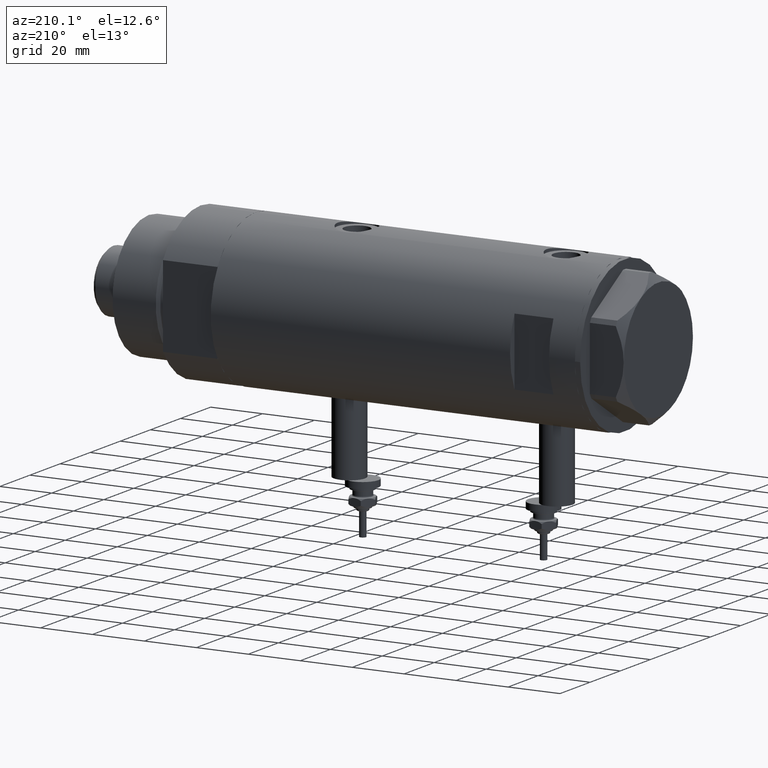
[diagram: clean part render]
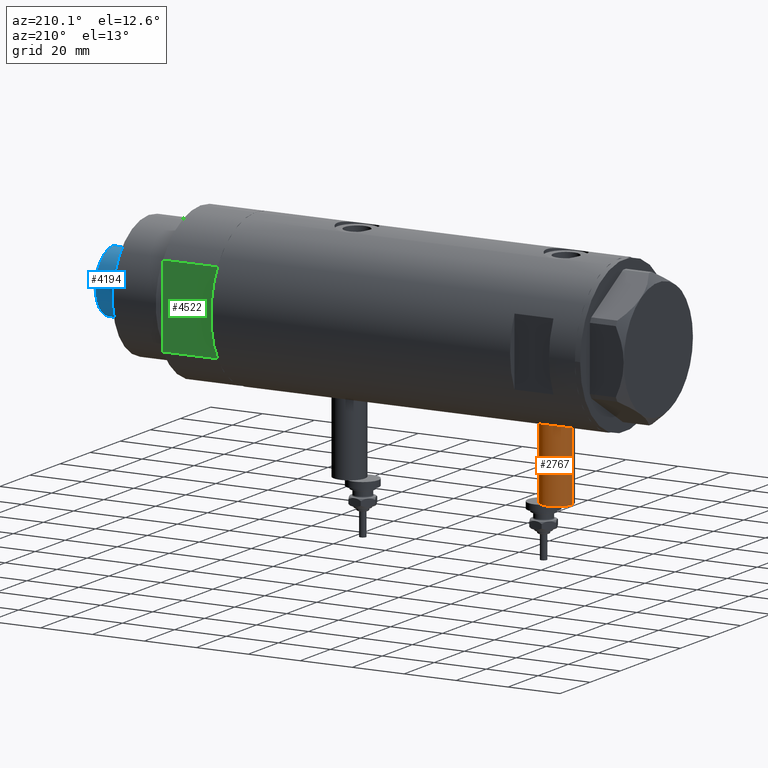
[diagram: same view with three faces highlighted in distinct colors, each labeled with its STEP entity id]
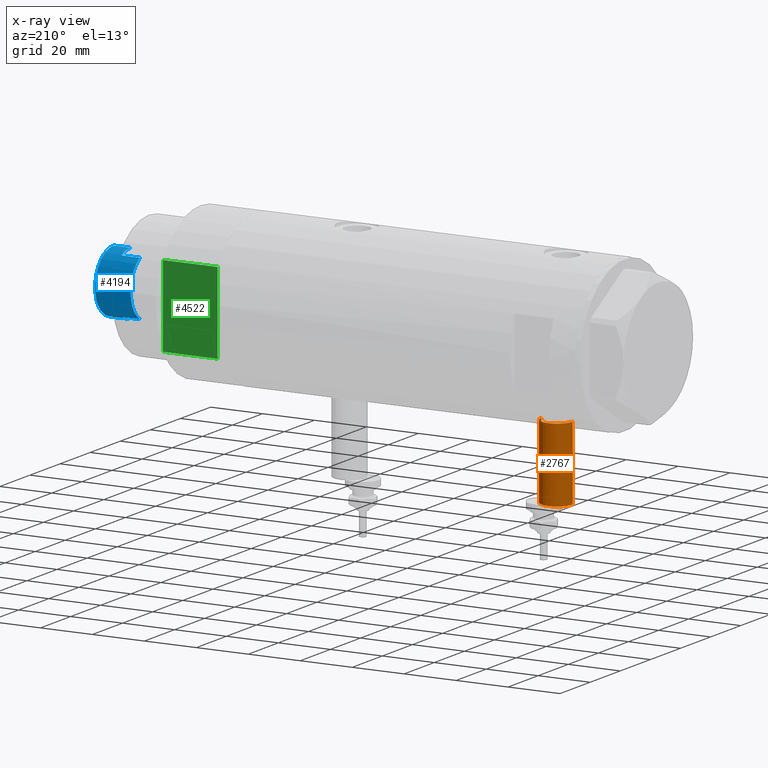
[diagram: x-ray of the same camera — body ghosted, the three highlighted faces saturated]
A machine part, auxiliary view with three faces highlighted in distinct colors.
The next image is the same camera in x-ray (body ghosted, the three faces saturated) — at least one of them is partly hidden behind the body in this view.
Their STEP definitions:

[orange] entity #2767 — the highlighted cylindrical surface (edge-blend (fillet) strip) has radius 6 mm, axis along (0, 0, 1).
#2 = VERTEX_POINT ( 'NONE', #5113 ) ;
#185 = AXIS2_PLACEMENT_3D ( 'NONE', #4355, #240, #2068 ) ;
#240 = DIRECTION ( 'NONE',  ( 1.000000000000000000, -0.000000000000000000, -0.000000000000000000 ) ) ;
#360 = CIRCLE ( 'NONE', #3305, 5.999999999999998224 ) ;
#504 = ORIENTED_EDGE ( 'NONE', *, *, #4273, .F. ) ;
#572 = VECTOR ( 'NONE', #1835, 1000.000000000000000 ) ;
#665 = EDGE_LOOP ( 'NONE', ( #504, #5012, #4877, #2873 ) ) ;
#697 = CYLINDRICAL_SURFACE ( 'NONE', #185, 5.999999999999998224 ) ;
#1113 = CARTESIAN_POINT ( 'NONE',  ( -56.60000000000000142, 7.347880794884112834E-16, 52.09999999999999432 ) ) ;
#1152 = FACE_OUTER_BOUND ( 'NONE', #665, .T. ) ;
#1375 = DIRECTION ( 'NONE',  ( -1.000000000000000000, 0.000000000000000000, 0.000000000000000000 ) ) ;
#1520 = EDGE_CURVE ( 'NONE', #3135, #1879, #5303, .T. ) ;
#1835 = DIRECTION ( 'NONE',  ( 1.000000000000000000, -0.000000000000000000, -0.000000000000000000 ) ) ;
#1879 = VERTEX_POINT ( 'NONE', #3730 ) ;
#2068 = DIRECTION ( 'NONE',  ( 0.000000000000000000, 0.000000000000000000, -1.000000000000000000 ) ) ;
#2212 = CARTESIAN_POINT ( 'NONE',  ( -56.60000000000000142, 0.000000000000000000, 40.09999999999999432 ) ) ;
#2239 = VERTEX_POINT ( 'NONE', #2212 ) ;
#2444 = CIRCLE ( 'NONE', #2654, 5.999999999999998224 ) ;
#2575 = DIRECTION ( 'NONE',  ( 1.000000000000000000, -0.000000000000000000, -0.000000000000000000 ) ) ;
#2654 = AXIS2_PLACEMENT_3D ( 'NONE', #5469, #1375, #4641 ) ;
#2767 = ADVANCED_FACE ( 'NONE', ( #1152 ), #697, .T. ) ;
#2873 = ORIENTED_EDGE ( 'NONE', *, *, #3029, .F. ) ;
#3029 = EDGE_CURVE ( 'NONE', #2239, #2, #3283, .T. ) ;
#3135 = VERTEX_POINT ( 'NONE', #3448 ) ;
#3283 = LINE ( 'NONE', #5109, #572 ) ;
#3305 = AXIS2_PLACEMENT_3D ( 'NONE', #5280, #5702, #3539 ) ;
#3448 = CARTESIAN_POINT ( 'NONE',  ( -56.60000000000000142, 7.347880794884108889E-16, 52.09999999999999432 ) ) ;
#3539 = DIRECTION ( 'NONE',  ( 0.000000000000000000, 0.000000000000000000, 1.000000000000000000 ) ) ;
#3630 = VECTOR ( 'NONE', #2575, 1000.000000000000000 ) ;
#3730 = CARTESIAN_POINT ( 'NONE',  ( -28.30000000000000071, 7.347880794884108889E-16, 52.09999999999999432 ) ) ;
#4273 = EDGE_CURVE ( 'NONE', #3135, #2239, #2444, .T. ) ;
#4355 = CARTESIAN_POINT ( 'NONE',  ( -56.60000000000000142, 0.000000000000000000, 46.09999999999999432 ) ) ;
#4641 = DIRECTION ( 'NONE',  ( 0.000000000000000000, 0.000000000000000000, 1.000000000000000000 ) ) ;
#4877 = ORIENTED_EDGE ( 'NONE', *, *, #5575, .T. ) ;
#5012 = ORIENTED_EDGE ( 'NONE', *, *, #1520, .T. ) ;
#5109 = CARTESIAN_POINT ( 'NONE',  ( -56.60000000000000142, 0.000000000000000000, 40.09999999999999432 ) ) ;
#5113 = CARTESIAN_POINT ( 'NONE',  ( -28.30000000000000071, 0.000000000000000000, 40.09999999999999432 ) ) ;
#5280 = CARTESIAN_POINT ( 'NONE',  ( -28.30000000000000071, 0.000000000000000000, 46.09999999999999432 ) ) ;
#5303 = LINE ( 'NONE', #1113, #3630 ) ;
#5469 = CARTESIAN_POINT ( 'NONE',  ( -56.60000000000000142, 0.000000000000000000, 46.09999999999999432 ) ) ;
#5575 = EDGE_CURVE ( 'NONE', #1879, #2, #360, .T. ) ;
#5702 = DIRECTION ( 'NONE',  ( -1.000000000000000000, 0.000000000000000000, 0.000000000000000000 ) ) ;

[blue] entity #4194 — the highlighted cylindrical surface (edge-blend (fillet) strip) has radius 12 mm, axis along (-1, -0, 0).
#252 = CIRCLE ( 'NONE', #2258, 12.00000000000000178 ) ;
#262 = VECTOR ( 'NONE', #5407, 1000.000000000000000 ) ;
#417 = LINE ( 'NONE', #1290, #262 ) ;
#425 = VERTEX_POINT ( 'NONE', #5577 ) ;
#472 = CYLINDRICAL_SURFACE ( 'NONE', #5510, 12.00000000000000000 ) ;
#494 = CIRCLE ( 'NONE', #5550, 12.00000000000000000 ) ;
#510 = DIRECTION ( 'NONE',  ( 0.000000000000000000, 0.000000000000000000, 1.000000000000000000 ) ) ;
#605 = CARTESIAN_POINT ( 'NONE',  ( 0.000000000000000000, 0.000000000000000000, 157.7000000000000171 ) ) ;
#700 = ORIENTED_EDGE ( 'NONE', *, *, #4156, .F. ) ;
#938 = ORIENTED_EDGE ( 'NONE', *, *, #2579, .T. ) ;
#977 = VERTEX_POINT ( 'NONE', #1457 ) ;
#1070 = VECTOR ( 'NONE', #3601, 1000.000000000000000 ) ;
#1134 = CARTESIAN_POINT ( 'NONE',  ( -10.48861764008966446, 5.830000000000123528, 157.7000000000000171 ) ) ;
#1282 = EDGE_CURVE ( 'NONE', #3912, #1296, #3363, .T. ) ;
#1290 = CARTESIAN_POINT ( 'NONE',  ( -10.48861764008966269, 5.829999999999999183, 164.7000000000000171 ) ) ;
#1296 = VERTEX_POINT ( 'NONE', #4390 ) ;
#1337 = ORIENTED_EDGE ( 'NONE', *, *, #3246, .F. ) ;
#1457 = CARTESIAN_POINT ( 'NONE',  ( 10.48861764008966269, 5.830000000000000071, 164.7000000000000171 ) ) ;
#1612 = DIRECTION ( 'NONE',  ( -0.000000000000000000, -0.000000000000000000, -1.000000000000000000 ) ) ;
#1635 = DIRECTION ( 'NONE',  ( 1.000000000000000000, 0.000000000000000000, 0.000000000000000000 ) ) ;
#1820 = CIRCLE ( 'NONE', #2583, 12.00000000000000178 ) ;
#1834 = EDGE_LOOP ( 'NONE', ( #3362, #3259, #5108, #2941, #2967, #700, #938, #1337 ) ) ;
#1841 = VERTEX_POINT ( 'NONE', #2282 ) ;
#1928 = DIRECTION ( 'NONE',  ( 1.000000000000000000, 0.000000000000000000, 0.000000000000000000 ) ) ;
#2018 = DIRECTION ( 'NONE',  ( 1.000000000000000000, 0.000000000000000000, 0.000000000000000000 ) ) ;
#2258 = AXIS2_PLACEMENT_3D ( 'NONE', #3358, #5642, #1928 ) ;
#2282 = CARTESIAN_POINT ( 'NONE',  ( 10.48861764008966269, 5.830000000000000071, 157.7000000000000171 ) ) ;
#2306 = VERTEX_POINT ( 'NONE', #4213 ) ;
#2371 = VERTEX_POINT ( 'NONE', #1134 ) ;
#2523 = CARTESIAN_POINT ( 'NONE',  ( 12.00000000000000000, 1.469576158976823947E-15, 164.7000000000000171 ) ) ;
#2535 = CARTESIAN_POINT ( 'NONE',  ( 0.000000000000000000, 0.000000000000000000, 164.7000000000000171 ) ) ;
#2579 = EDGE_CURVE ( 'NONE', #425, #3742, #1820, .T. ) ;
#2583 = AXIS2_PLACEMENT_3D ( 'NONE', #2535, #5761, #1635 ) ;
#2690 = FACE_OUTER_BOUND ( 'NONE', #1834, .T. ) ;
#2740 = VECTOR ( 'NONE', #1612, 1000.000000000000000 ) ;
#2846 = CARTESIAN_POINT ( 'NONE',  ( 10.48861764008966269, 5.830000000000000071, 164.7000000000000171 ) ) ;
#2941 = ORIENTED_EDGE ( 'NONE', *, *, #4974, .T. ) ;
#2967 = ORIENTED_EDGE ( 'NONE', *, *, #3265, .T. ) ;
#3246 = EDGE_CURVE ( 'NONE', #2306, #3742, #5877, .T. ) ;
#3259 = ORIENTED_EDGE ( 'NONE', *, *, #1282, .T. ) ;
#3265 = EDGE_CURVE ( 'NONE', #1841, #2371, #5274, .T. ) ;
#3358 = CARTESIAN_POINT ( 'NONE',  ( 0.000000000000000000, 0.000000000000000000, 164.7000000000000171 ) ) ;
#3362 = ORIENTED_EDGE ( 'NONE', *, *, #3576, .T. ) ;
#3363 = LINE ( 'NONE', #2523, #3721 ) ;
#3427 = DIRECTION ( 'NONE',  ( -0.000000000000000000, -0.000000000000000000, -1.000000000000000000 ) ) ;
#3454 = AXIS2_PLACEMENT_3D ( 'NONE', #605, #510, #2018 ) ;
#3576 = EDGE_CURVE ( 'NONE', #2306, #3912, #494, .T. ) ;
#3601 = DIRECTION ( 'NONE',  ( -0.000000000000000000, -0.000000000000000000, -1.000000000000000000 ) ) ;
#3614 = DIRECTION ( 'NONE',  ( -0.000000000000000000, -0.000000000000000000, -1.000000000000000000 ) ) ;
#3664 = CARTESIAN_POINT ( 'NONE',  ( -12.00000000000000000, 0.000000000000000000, 164.7000000000000171 ) ) ;
#3721 = VECTOR ( 'NONE', #3427, 1000.000000000000000 ) ;
#3742 = VERTEX_POINT ( 'NONE', #4880 ) ;
#3745 = DIRECTION ( 'NONE',  ( 0.000000000000000000, 0.000000000000000000, -1.000000000000000000 ) ) ;
#3793 = CARTESIAN_POINT ( 'NONE',  ( 12.00000000000000000, 1.469576158976823947E-15, 171.3000000000000114 ) ) ;
#3912 = VERTEX_POINT ( 'NONE', #3793 ) ;
#4156 = EDGE_CURVE ( 'NONE', #425, #2371, #417, .T. ) ;
#4194 = ADVANCED_FACE ( 'NONE', ( #2690 ), #472, .T. ) ;
#4213 = CARTESIAN_POINT ( 'NONE',  ( -12.00000000000000000, 0.000000000000000000, 171.3000000000000114 ) ) ;
#4390 = CARTESIAN_POINT ( 'NONE',  ( 12.00000000000000355, 1.469576158976824342E-15, 164.7000000000000171 ) ) ;
#4657 = DIRECTION ( 'NONE',  ( 1.000000000000000000, 0.000000000000000000, 0.000000000000000000 ) ) ;
#4880 = CARTESIAN_POINT ( 'NONE',  ( -12.00000000000000355, 0.000000000000000000, 164.7000000000000171 ) ) ;
#4908 = DIRECTION ( 'NONE',  ( -1.000000000000000000, 0.000000000000000000, 0.000000000000000000 ) ) ;
#4963 = CARTESIAN_POINT ( 'NONE',  ( 0.000000000000000000, 0.000000000000000000, 164.7000000000000171 ) ) ;
#4974 = EDGE_CURVE ( 'NONE', #977, #1841, #5124, .T. ) ;
#5108 = ORIENTED_EDGE ( 'NONE', *, *, #5404, .T. ) ;
#5124 = LINE ( 'NONE', #2846, #2740 ) ;
#5144 = CARTESIAN_POINT ( 'NONE',  ( 0.000000000000000000, 0.000000000000000000, 171.3000000000000114 ) ) ;
#5274 = CIRCLE ( 'NONE', #3454, 12.00000000000006217 ) ;
#5404 = EDGE_CURVE ( 'NONE', #1296, #977, #252, .T. ) ;
#5407 = DIRECTION ( 'NONE',  ( -0.000000000000000000, -0.000000000000000000, -1.000000000000000000 ) ) ;
#5510 = AXIS2_PLACEMENT_3D ( 'NONE', #4963, #3614, #4908 ) ;
#5550 = AXIS2_PLACEMENT_3D ( 'NONE', #5144, #3745, #4657 ) ;
#5577 = CARTESIAN_POINT ( 'NONE',  ( -10.48861764008966269, 5.829999999999999183, 164.7000000000000171 ) ) ;
#5642 = DIRECTION ( 'NONE',  ( 0.000000000000000000, 0.000000000000000000, 1.000000000000000000 ) ) ;
#5761 = DIRECTION ( 'NONE',  ( 0.000000000000000000, 0.000000000000000000, 1.000000000000000000 ) ) ;
#5877 = LINE ( 'NONE', #3664, #1070 ) ;

[green] entity #4522 — the highlighted planar face has unit normal (0, -1, -0).
#60 = AXIS2_PLACEMENT_3D ( 'NONE', #661, #1567, #2484 ) ;
#75 = EDGE_LOOP ( 'NONE', ( #1078, #5908, #1229, #5768, #3591, #2471 ) ) ;
#142 = DIRECTION ( 'NONE',  ( -0.000000000000000000, -0.000000000000000000, 1.000000000000000000 ) ) ;
#272 = CARTESIAN_POINT ( 'NONE',  ( 15.66045976336582690, 25.00000000000000000, 0.000000000000000000 ) ) ;
#294 = LINE ( 'NONE', #4738, #1704 ) ;
#388 = VECTOR ( 'NONE', #1370, 1000.000000000000000 ) ;
#440 = DIRECTION ( 'NONE',  ( 1.000000000000000000, 0.000000000000000000, 0.000000000000000000 ) ) ;
#500 = EDGE_CURVE ( 'NONE', #2611, #5172, #775, .T. ) ;
#609 = LINE ( 'NONE', #1930, #4586 ) ;
#635 = VECTOR ( 'NONE', #440, 1000.000000000000000 ) ;
#661 = CARTESIAN_POINT ( 'NONE',  ( -15.66045976336583401, 25.00000000000000000, 0.000000000000000000 ) ) ;
#775 = LINE ( 'NONE', #981, #388 ) ;
#981 = CARTESIAN_POINT ( 'NONE',  ( -15.66045976336583401, 25.00000000000000000, 21.00000000000000000 ) ) ;
#1078 = ORIENTED_EDGE ( 'NONE', *, *, #500, .T. ) ;
#1090 = EDGE_CURVE ( 'NONE', #1571, #5629, #2946, .T. ) ;
#1125 = CARTESIAN_POINT ( 'NONE',  ( -15.66045976336583401, 25.00000000000000000, 0.000000000000000000 ) ) ;
#1140 = VERTEX_POINT ( 'NONE', #1679 ) ;
#1229 = ORIENTED_EDGE ( 'NONE', *, *, #1090, .F. ) ;
#1284 = VERTEX_POINT ( 'NONE', #1125 ) ;
#1370 = DIRECTION ( 'NONE',  ( 1.000000000000000000, 0.000000000000000000, 0.000000000000000000 ) ) ;
#1567 = DIRECTION ( 'NONE',  ( 0.000000000000000000, -1.000000000000000000, 0.000000000000000000 ) ) ;
#1571 = VERTEX_POINT ( 'NONE', #1667 ) ;
#1667 = CARTESIAN_POINT ( 'NONE',  ( 7.141428428542853091, 25.00000000000000000, 0.000000000000000000 ) ) ;
#1679 = CARTESIAN_POINT ( 'NONE',  ( -7.141428428542853091, 25.00000000000000000, 0.000000000000000000 ) ) ;
#1704 = VECTOR ( 'NONE', #3433, 1000.000000000000000 ) ;
#1770 = LINE ( 'NONE', #4542, #635 ) ;
#1930 = CARTESIAN_POINT ( 'NONE',  ( 15.66045976336583401, 25.00000000000000000, 0.000000000000000000 ) ) ;
#1942 = EDGE_CURVE ( 'NONE', #5629, #5172, #609, .T. ) ;
#1957 = LINE ( 'NONE', #4123, #2736 ) ;
#2471 = ORIENTED_EDGE ( 'NONE', *, *, #5839, .T. ) ;
#2484 = DIRECTION ( 'NONE',  ( 0.000000000000000000, -0.000000000000000000, -1.000000000000000000 ) ) ;
#2611 = VERTEX_POINT ( 'NONE', #4930 ) ;
#2736 = VECTOR ( 'NONE', #3240, 1000.000000000000000 ) ;
#2946 = LINE ( 'NONE', #4776, #5631 ) ;
#3240 = DIRECTION ( 'NONE',  ( 1.000000000000000000, 0.000000000000000000, 0.000000000000000000 ) ) ;
#3433 = DIRECTION ( 'NONE',  ( -0.000000000000000000, -0.000000000000000000, 1.000000000000000000 ) ) ;
#3591 = ORIENTED_EDGE ( 'NONE', *, *, #4864, .F. ) ;
#3811 = PLANE ( 'NONE',  #60 ) ;
#4109 = CARTESIAN_POINT ( 'NONE',  ( 15.66045976336583045, 24.99999999999999645, 20.99999999999999645 ) ) ;
#4123 = CARTESIAN_POINT ( 'NONE',  ( -15.66045976336583401, 25.00000000000000000, 0.000000000000000000 ) ) ;
#4267 = EDGE_CURVE ( 'NONE', #1140, #1571, #1770, .T. ) ;
#4331 = DIRECTION ( 'NONE',  ( 1.000000000000000000, 0.000000000000000000, 0.000000000000000000 ) ) ;
#4522 = ADVANCED_FACE ( 'NONE', ( #5672 ), #3811, .F. ) ;
#4542 = CARTESIAN_POINT ( 'NONE',  ( -15.66045976336583401, 25.00000000000000000, 0.000000000000000000 ) ) ;
#4586 = VECTOR ( 'NONE', #142, 1000.000000000000000 ) ;
#4738 = CARTESIAN_POINT ( 'NONE',  ( -15.66045976336583401, 25.00000000000000000, 0.000000000000000000 ) ) ;
#4776 = CARTESIAN_POINT ( 'NONE',  ( -15.66045976336583401, 25.00000000000000000, 0.000000000000000000 ) ) ;
#4864 = EDGE_CURVE ( 'NONE', #1284, #1140, #1957, .T. ) ;
#4930 = CARTESIAN_POINT ( 'NONE',  ( -15.66045976336583045, 24.99999999999999645, 21.00000000000000355 ) ) ;
#5172 = VERTEX_POINT ( 'NONE', #4109 ) ;
#5629 = VERTEX_POINT ( 'NONE', #272 ) ;
#5631 = VECTOR ( 'NONE', #4331, 1000.000000000000000 ) ;
#5672 = FACE_OUTER_BOUND ( 'NONE', #75, .T. ) ;
#5768 = ORIENTED_EDGE ( 'NONE', *, *, #4267, .F. ) ;
#5839 = EDGE_CURVE ( 'NONE', #1284, #2611, #294, .T. ) ;
#5908 = ORIENTED_EDGE ( 'NONE', *, *, #1942, .F. ) ;